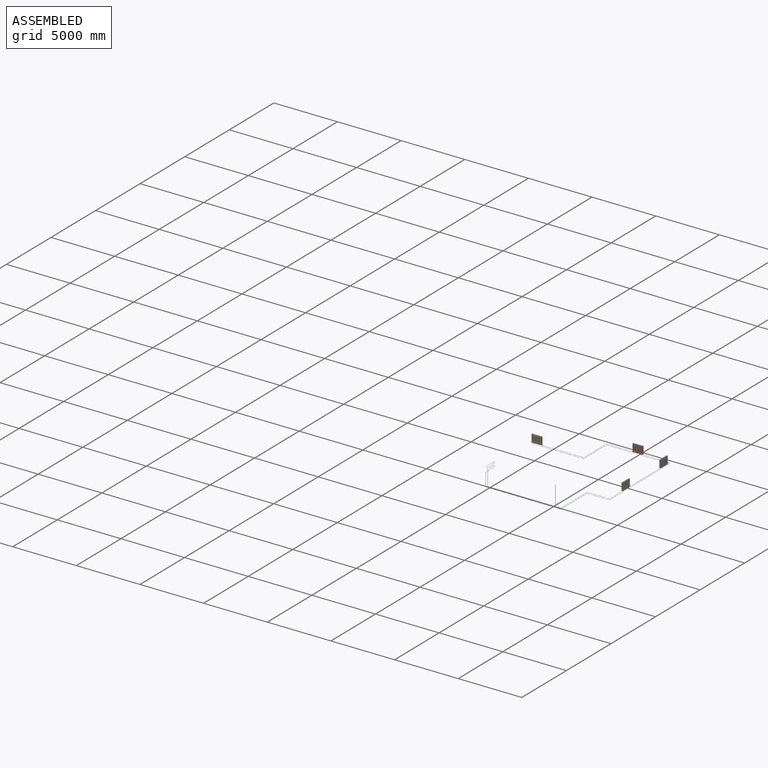
[diagram: assembled view]
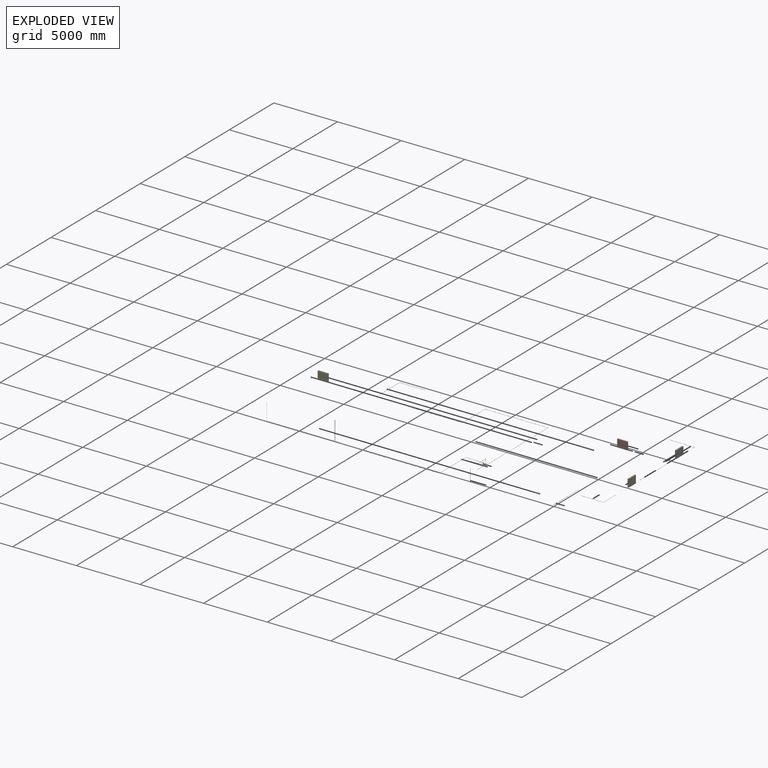
[diagram: exploded view]
GUIDED TOUR — MATED ASSEMBLY (Onshape document f1add12470df2a8bb8af2b6b, AutoMate assembly f1add12470df2a8bb8af2b6b_20e845e825281c4f701bb058_0910259504fdc3fc45e2ee12_default)

This assembly has 21 components, labeled P0..P20 below (a component is one placed occurrence of a part; the same part can appear more than once), held together by 20 mates. A mate is a constraint between two components; its type names the relative motion it leaves free:
  FASTENED — locks the two components together rigidly (no relative motion).
Axis/direction vectors are unit vectors and 'through' points are millimeter coordinates, both in the assembly's world frame.

MATES
  1. FASTENED "Fastened 10": P14 <-> P20, direction (0.000, -1.000, 0.000) through (2634.05, 8167.02, -1012.87) mm
  2. FASTENED "Fastened 8": P4 <-> P9, direction (0.000, -1.000, 0.000) through (2634.05, 3917.02, -1012.87) mm
  3. FASTENED "Fastened 17": P8 <-> P15, direction (1.000, 0.000, 0.000) through (-5540.95, 6682.02, -1062.87) mm
  4. FASTENED "Fastened 7": P9 <-> P19, direction (0.000, -1.000, 0.000) through (2634.05, 3867.02, -1062.87) mm
  5. FASTENED "Fastened 20": P6 <-> P17, direction (0.000, 0.000, -1.000) through (-4875.95, -457.98, 292.13) mm
  6. FASTENED "Fastened 18": P12 <-> P8, direction (1.000, 0.000, 0.000) through (-5590.95, 6682.02, -1012.87) mm
  7. FASTENED "Fastened 1": P17 <-> P13, direction (1.000, 0.000, 0.000) through (859.05, -457.98, -1062.87) mm
  8. FASTENED "Fastened 15": P18 <-> P7, direction (1.000, 0.000, 0.000) through (-240.95, 9232.02, -1012.87) mm
  9. FASTENED "Fastened 12": P3 <-> P16, direction (0.000, -1.000, 0.000) through (2634.05, 9017.02, -1062.87) mm
  10. FASTENED "Fastened 23": P5 <-> P1, direction (0.000, 0.000, 1.000) through (-5015.95, -457.98, -127.87) mm
  11. FASTENED "Fastened 11": P16 <-> P14, direction (0.000, -1.000, 0.000) through (2634.05, 8967.02, -1012.87) mm
  12. FASTENED "Fastened 6": P19 <-> P9, direction (0.000, 1.000, 0.000) through (2634.05, 3867.02, -1062.87) mm
  13. FASTENED "Fastened 24": P10 <-> P5, direction (-1.000, 0.000, 0.000) through (-4990.95, -457.98, -1152.87) mm
  14. FASTENED "Fastened 13": P11 <-> P3, direction (1.000, 0.000, 0.000) through (609.05, 9232.02, -1062.87) mm
  15. FASTENED "Fastened 14": P7 <-> P11, direction (1.000, 0.000, 0.000) through (559.05, 9232.02, -1012.87) mm
  16. FASTENED "Fastened 19": P0 <-> P12, direction (1.000, 0.000, 0.000) through (-6390.95, 6682.02, -1012.87) mm
  17. FASTENED "Fastened 22": P1 <-> P2, direction (0.000, -1.000, 0.000) through (-5015.95, -432.98, 317.13) mm
  18. FASTENED "Fastened 16": P15 <-> P18, direction (1.000, 0.000, 0.000) through (-290.95, 9232.02, -1062.87) mm
  19. FASTENED "Fastened 21": P2 <-> P6, direction (1.000, 0.000, 0.000) through (-4990.95, -457.98, 317.13) mm
  20. FASTENED "Fastened 9": P20 <-> P4, direction (0.000, -1.000, 0.000) through (2634.05, 4717.02, -1012.87) mm

ASSEMBLY ORDER
  1. P19 — the base component [order verified]
  2. P13 [order verified]
  3. P9 [order verified]
  4. P4 [order verified]
  5. P20 [order verified]
  6. P14 [order verified]
  7. P16 [order verified]
  8. P3 [order verified]
  9. P11 [order verified]
  10. P7 [order verified]
  11. P18 [order verified]
  12. P15 [order verified]
  13. P1 [order verified]
  14. P6 [order verified]
  15. P2 [order verified]
  16. P17 [order verified]
  17. P8 [order verified]
  18. P12 [order verified]
  19. P10 [order verified]
  20. P5 [order verified]
  21. P0 [order verified]
Order-tag legend:
  [order verified] — this step's position reverses a verified removal order: the component was checked to insert without passing through the ones already placed.

Of the 21 components, 4 carry the full construction recipe — the FeatureScript program that regenerates the part's solid from scratch; the rest are supplied as boundary geometry only.
Because this assembly has more than 12 components, the tour below covers the 12 most significant ones individually (every recipe-attached component first, then the largest by part volume), in assembly order; the remaining 9 are summarized together in a grouped section at the end.
Each toured component is shown spotlighted twice — in the assembled view, then in the exploded view, where a leader line traces a displaced component back to its assembled socket (saturated green if recipe-attached, orange if geometry-only; every other component desaturated gray) — followed by its recipe or geometry summary and the mates that hold it.
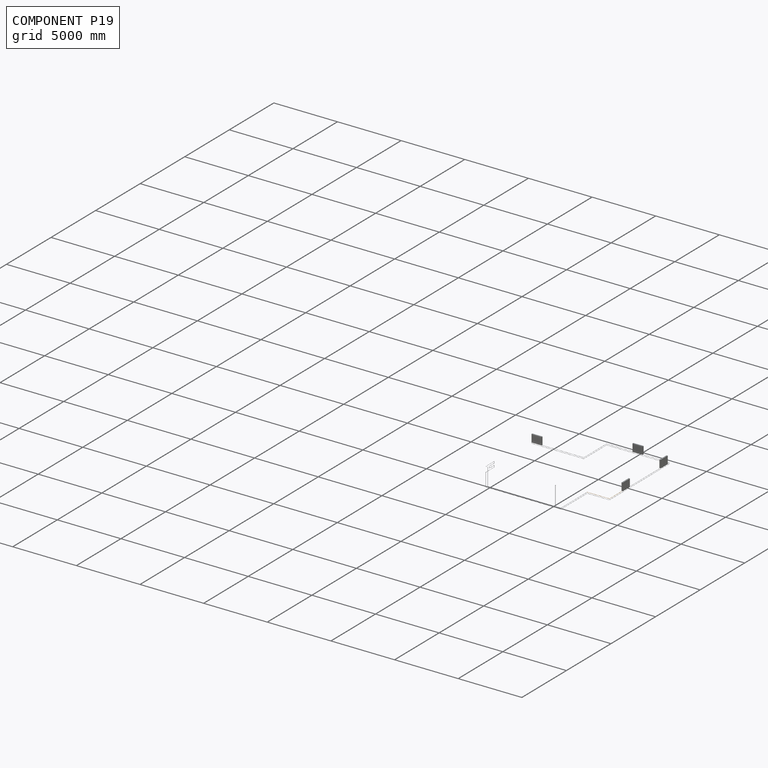
[diagram: component P19 — assembled]
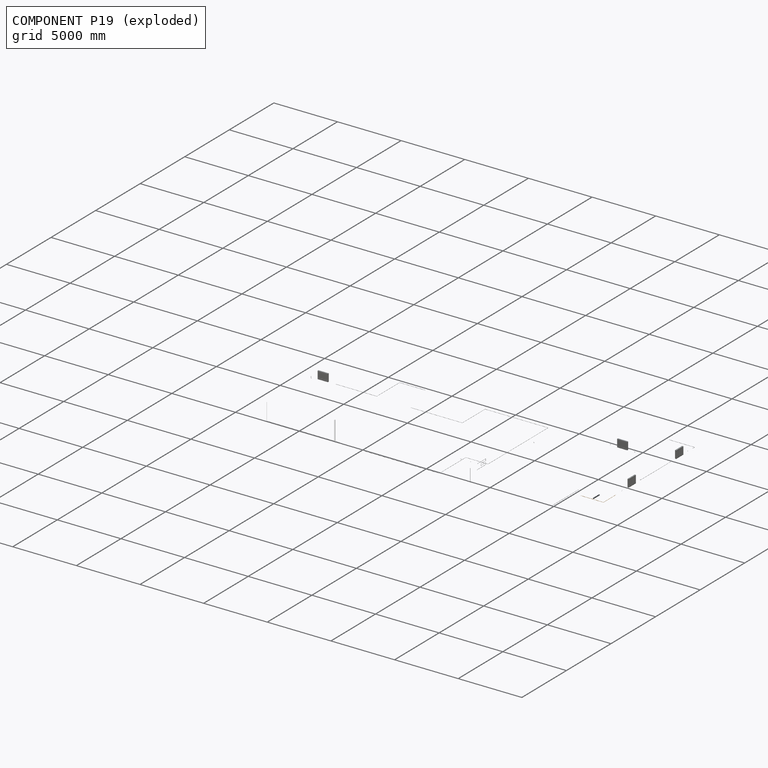
[diagram: component P19 — exploded]
COMPONENT P19 — geometry summary (no construction recipe available for this part):
  bounding box: 1768.7 x 1400.0 x 15.0 mm
  B-rep topology: 1 solid, 7 faces, 22 edges
  volume: 554376 mm^3 (1% of its bounding box)
  symmetry: mirror-symmetric across its z mid-plane
Held by: FASTENED mate "Fastened 7" to P9; FASTENED mate "Fastened 6" to P9.
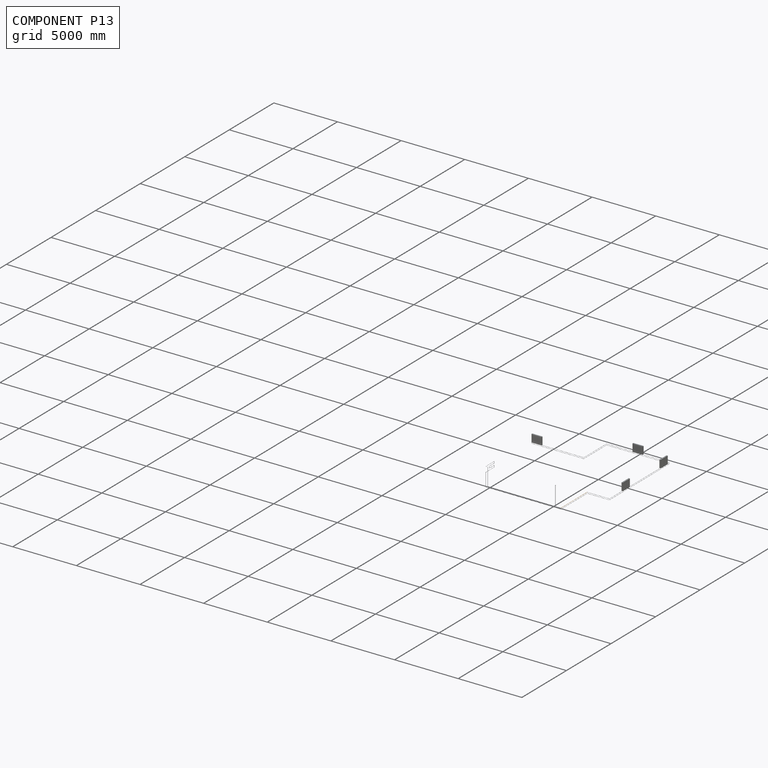
[diagram: component P13 — assembled]
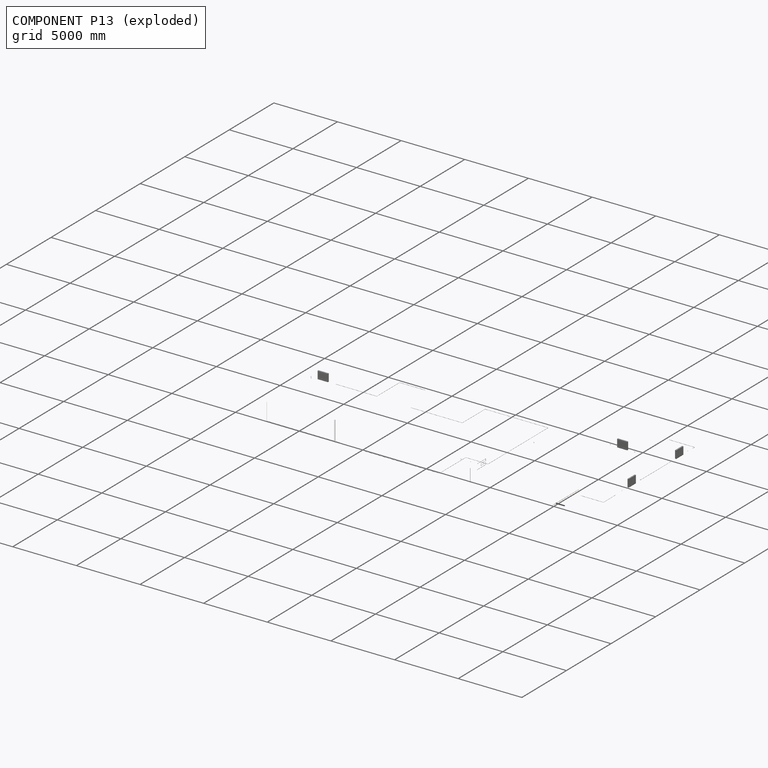
[diagram: component P13 — exploded]
COMPONENT P13 — geometry summary (no construction recipe available for this part):
  bounding box: 2944.4 x 34.4 x 15.0 mm
  B-rep topology: 1 solid, 5 faces, 14 edges
  volume: 521937 mm^3 (34% of its bounding box)
  symmetry: revolution-symmetric about the y axis through its bounding-box center; mirror-symmetric across its z mid-plane
Held by: FASTENED mate "Fastened 1" to P17.
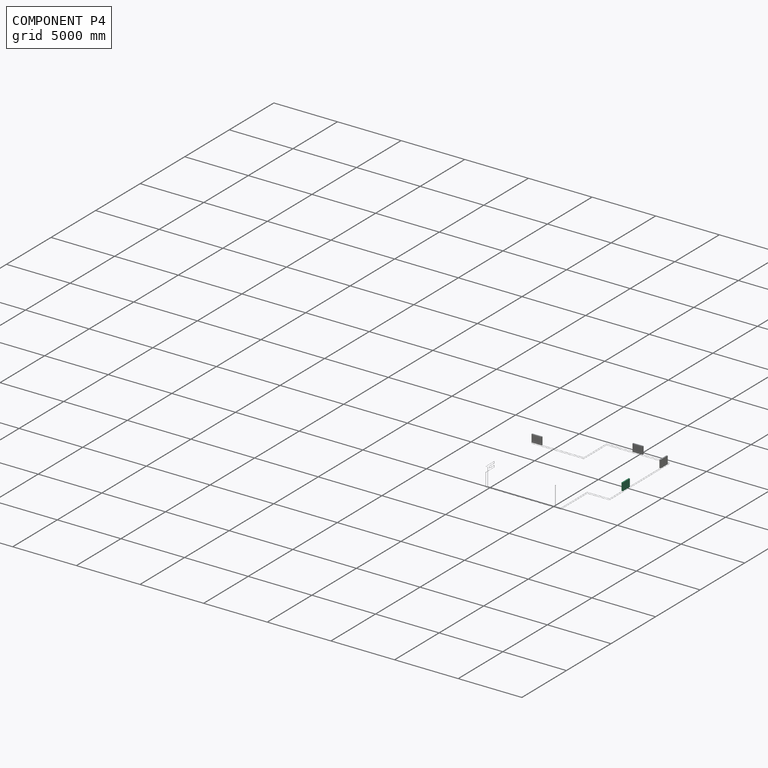
[diagram: component P4 — assembled]
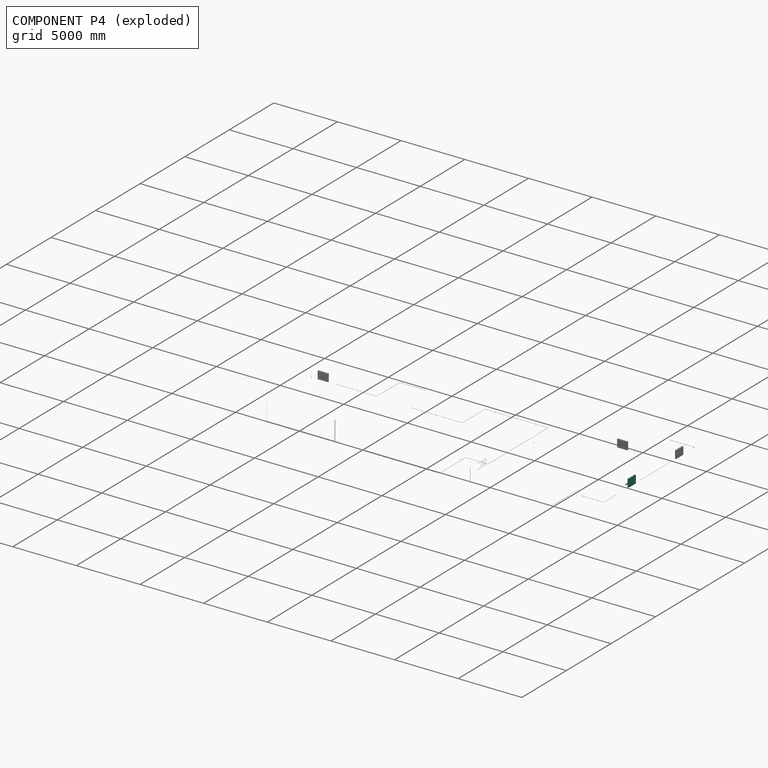
[diagram: component P4 — exploded]
COMPONENT P4 — recipe-attached (CADFS 00287549, mesh-verified: the recipe's output STEP matches this component's geometry to below the mesh-comparison resolution (tessellation chordal tolerance ~1.51 mm)).
Held by: FASTENED mate "Fastened 8" to P9; FASTENED mate "Fastened 9" to P20.
Construction recipe (FeatureScript — the CAD program that rebuilds this solid; sketch coordinates are in the units given by the * unit suffixes, e.g. mm):

FeatureScript 1511;
import(path : "onshape/std/geometry.fs", version : "1511.0");
import(path : "onshape/std/common.fs", version : "1511.0");
const mm = millimeter;
const VERTEX = EntityType.VERTEX;
const EDGE = EntityType.EDGE;
const FACE = EntityType.FACE;
const BODY = EntityType.BODY;
function v(x, y){return vector(x, y);}
function OD(order){return orderDisambiguation(order);}
function OSD(set){return originalSetDisambiguation(set);}
function TD(topology){return topologyDisambiguation(topology);}
function TDD(query){return trueDependencyDisambiguation(query);}
function sQuery(a, b, c) {return sketchEntityQuery(a, b, c);}

annotation { "Feature Type Name" : "Feature", "Feature Type Description" : "" }
export const myFeature = defineFeature(function(context is Context, id is Id, definition is map)
    precondition{}
    {
        {
            var Q0;
            Q0=qCreatedBy(makeId("Front.planeOp"),FACE);
            var sketch = newSketch(context, id + "F0", { "sketchPlane" : qUnion([Q0])});
            skLineSegment(sketch, "E0.bottom", {"start": v(0, -50) * mm, "end": v(800, -50) * mm});
            skLineSegment(sketch, "E0.top", {"start": v(0, 550) * mm, "end": v(800, 550) * mm});
            skLineSegment(sketch, "E0.left", {"start": v(0, -50) * mm, "end": v(0, 550) * mm});
            skLineSegment(sketch, "E0.right", {"start": v(800, -50) * mm, "end": v(800, 550) * mm});
            skLineSegment(sketch, "E1.bottom", {"start": v(65, 450) * mm, "end": v(95, 450) * mm});
            skLineSegment(sketch, "E1.top", {"start": v(65, 50) * mm, "end": v(95, 50) * mm});
            skLineSegment(sketch, "E1.left", {"start": v(65, 450) * mm, "end": v(65, 50) * mm});
            skLineSegment(sketch, "E1.right", {"start": v(95, 450) * mm, "end": v(95, 50) * mm});
            skLineSegment(sketch, "E2.1.0.0", {"start": v(145, 450) * mm, "end": v(145, 50) * mm});
            skLineSegment(sketch, "E2.1.0.1", {"start": v(175, 450) * mm, "end": v(175, 50) * mm});
            skLineSegment(sketch, "E2.1.0.2", {"start": v(145, 50) * mm, "end": v(175, 50) * mm});
            skLineSegment(sketch, "E2.1.0.3", {"start": v(145, 450) * mm, "end": v(175, 450) * mm});
            skLineSegment(sketch, "E2.2.0.0", {"start": v(225, 450) * mm, "end": v(225, 50) * mm});
            skLineSegment(sketch, "E2.2.0.1", {"start": v(255, 450) * mm, "end": v(255, 50) * mm});
            skLineSegment(sketch, "E2.2.0.2", {"start": v(225, 50) * mm, "end": v(255, 50) * mm});
            skLineSegment(sketch, "E2.2.0.3", {"start": v(225, 450) * mm, "end": v(255, 450) * mm});
            skLineSegment(sketch, "E2.3.0.0", {"start": v(305, 450) * mm, "end": v(305, 50) * mm});
            skLineSegment(sketch, "E2.3.0.1", {"start": v(335, 450) * mm, "end": v(335, 50) * mm});
            skLineSegment(sketch, "E2.3.0.2", {"start": v(305, 50) * mm, "end": v(335, 50) * mm});
            skLineSegment(sketch, "E2.3.0.3", {"start": v(305, 450) * mm, "end": v(335, 450) * mm});
            skLineSegment(sketch, "E2.4.0.0", {"start": v(385, 450) * mm, "end": v(385, 50) * mm});
            skLineSegment(sketch, "E2.4.0.1", {"start": v(415, 450) * mm, "end": v(415, 50) * mm});
            skLineSegment(sketch, "E2.4.0.2", {"start": v(385, 50) * mm, "end": v(415, 50) * mm});
            skLineSegment(sketch, "E2.4.0.3", {"start": v(385, 450) * mm, "end": v(415, 450) * mm});
            skLineSegment(sketch, "E2.5.0.0", {"start": v(465, 450) * mm, "end": v(465, 50) * mm});
            skLineSegment(sketch, "E2.5.0.1", {"start": v(495, 450) * mm, "end": v(495, 50) * mm});
            skLineSegment(sketch, "E2.5.0.2", {"start": v(465, 50) * mm, "end": v(495, 50) * mm});
            skLineSegment(sketch, "E2.5.0.3", {"start": v(465, 450) * mm, "end": v(495, 450) * mm});
            skLineSegment(sketch, "E2.6.0.0", {"start": v(545, 450) * mm, "end": v(545, 50) * mm});
            skLineSegment(sketch, "E2.6.0.1", {"start": v(575, 450) * mm, "end": v(575, 50) * mm});
            skLineSegment(sketch, "E2.6.0.2", {"start": v(545, 50) * mm, "end": v(575, 50) * mm});
            skLineSegment(sketch, "E2.6.0.3", {"start": v(545, 450) * mm, "end": v(575, 450) * mm});
            skLineSegment(sketch, "E2.7.0.0", {"start": v(625, 450) * mm, "end": v(625, 50) * mm});
            skLineSegment(sketch, "E2.7.0.1", {"start": v(655, 450) * mm, "end": v(655, 50) * mm});
            skLineSegment(sketch, "E2.7.0.2", {"start": v(625, 50) * mm, "end": v(655, 50) * mm});
            skLineSegment(sketch, "E2.7.0.3", {"start": v(625, 450) * mm, "end": v(655, 450) * mm});
            skLineSegment(sketch, "E2.8.0.0", {"start": v(705, 450) * mm, "end": v(705, 50) * mm});
            skLineSegment(sketch, "E2.8.0.1", {"start": v(735, 450) * mm, "end": v(735, 50) * mm});
            skLineSegment(sketch, "E2.8.0.2", {"start": v(705, 50) * mm, "end": v(735, 50) * mm});
            skLineSegment(sketch, "E2.8.0.3", {"start": v(705, 450) * mm, "end": v(735, 450) * mm});
            skLineSegment(sketch, "E2.direction1", {"start": v(65, 50) * mm, "end": v(145, 50) * mm, "construction": true});
            skSolve(sketch);
        }
        {
            var Q0;
            Q0 = qSketchRegion(id + "F0", true);
            extrude(context, id + "F1", {"entities" : qUnion([Q0]), "endBound" : BoundingType.SYMMETRIC, "depth" : 100 * mm, "offsetDistance" : 25 * mm});
        }
    });
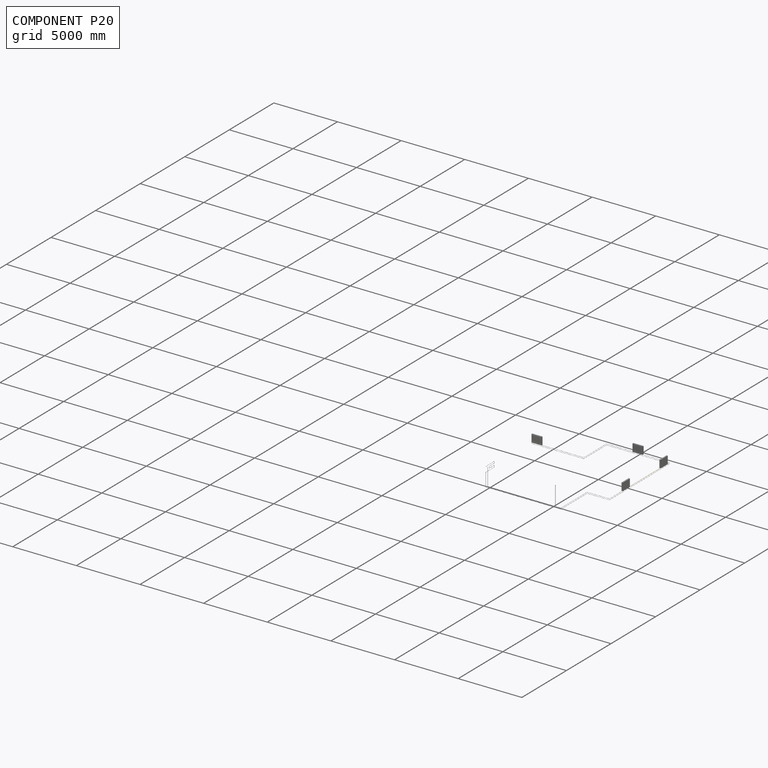
[diagram: component P20 — assembled]
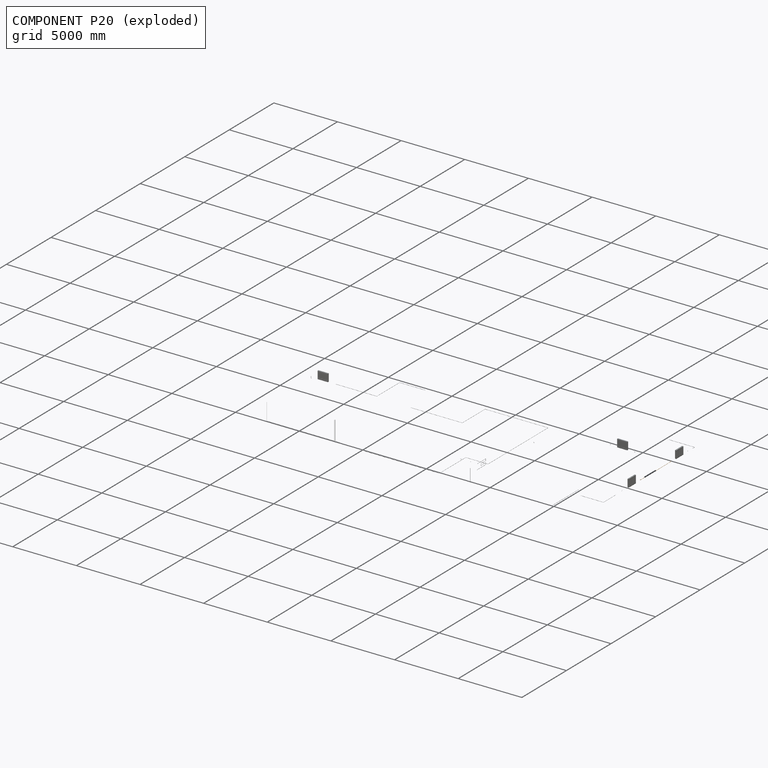
[diagram: component P20 — exploded]
COMPONENT P20 — geometry summary (no construction recipe available for this part):
  bounding box: 3450.0 x 68.7 x 15.0 mm
  B-rep topology: 1 solid, 11 faces, 38 edges
  volume: 622786 mm^3 (18% of its bounding box)
  symmetry: 2-fold rotationally symmetric about the z axis; mirror-symmetric across its x mid-plane, y mid-plane
Held by: FASTENED mate "Fastened 10" to P14; FASTENED mate "Fastened 9" to P4.
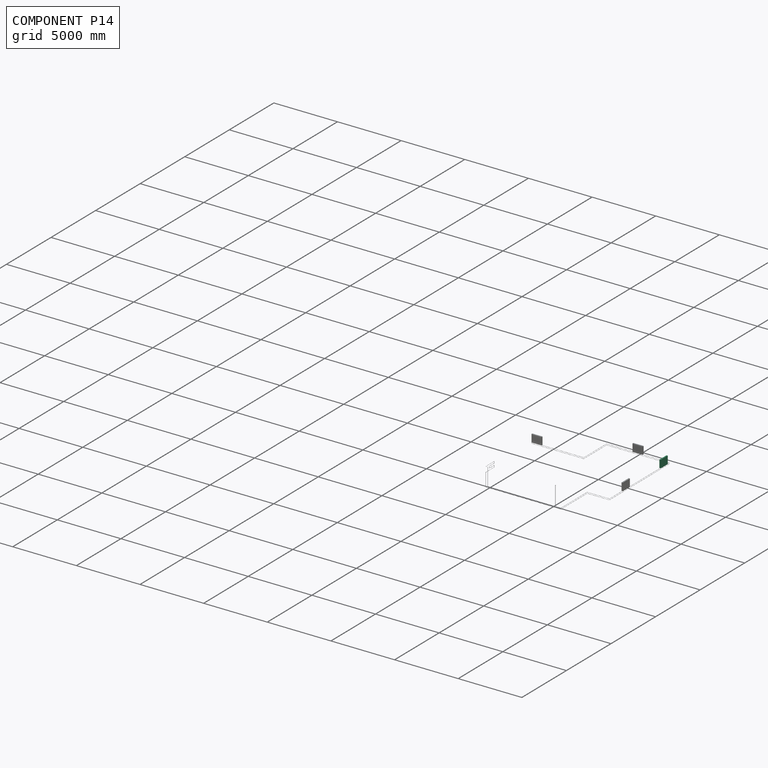
[diagram: component P14 — assembled]
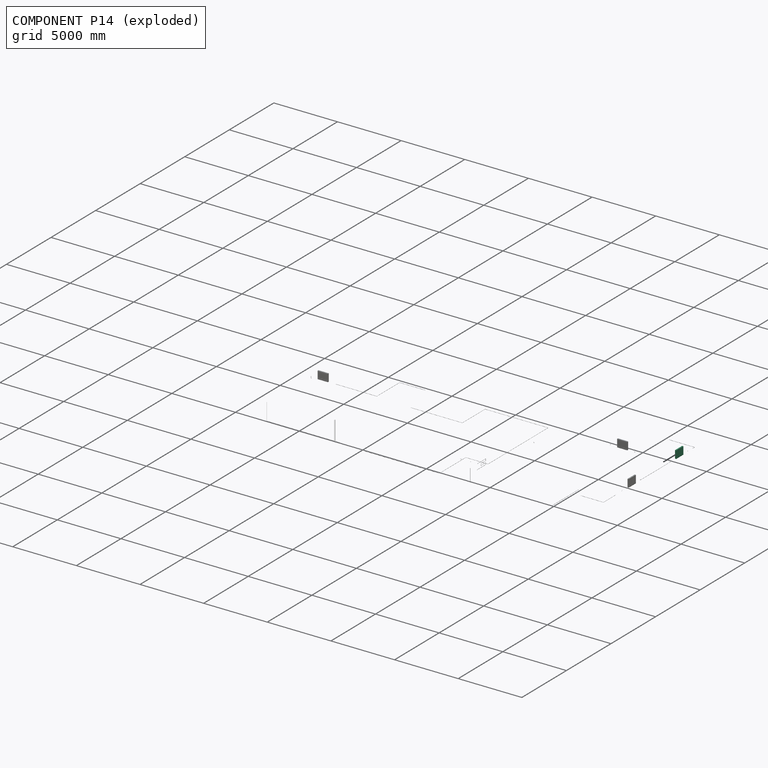
[diagram: component P14 — exploded]
COMPONENT P14 — same part as P4 (CADFS 00287549); its construction recipe is shown at P4.
Held by: FASTENED mate "Fastened 10" to P20; FASTENED mate "Fastened 11" to P16.
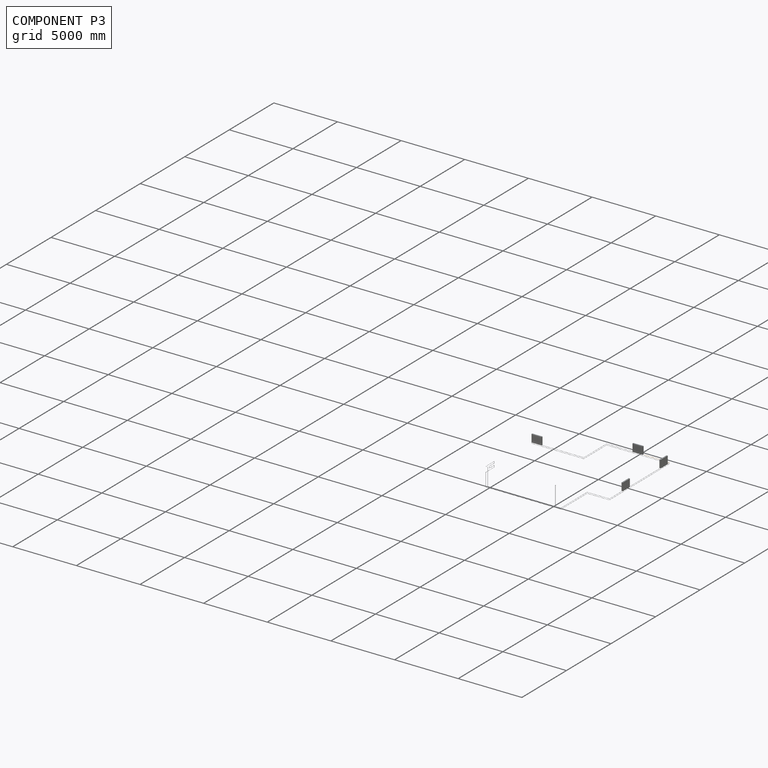
[diagram: component P3 — assembled]
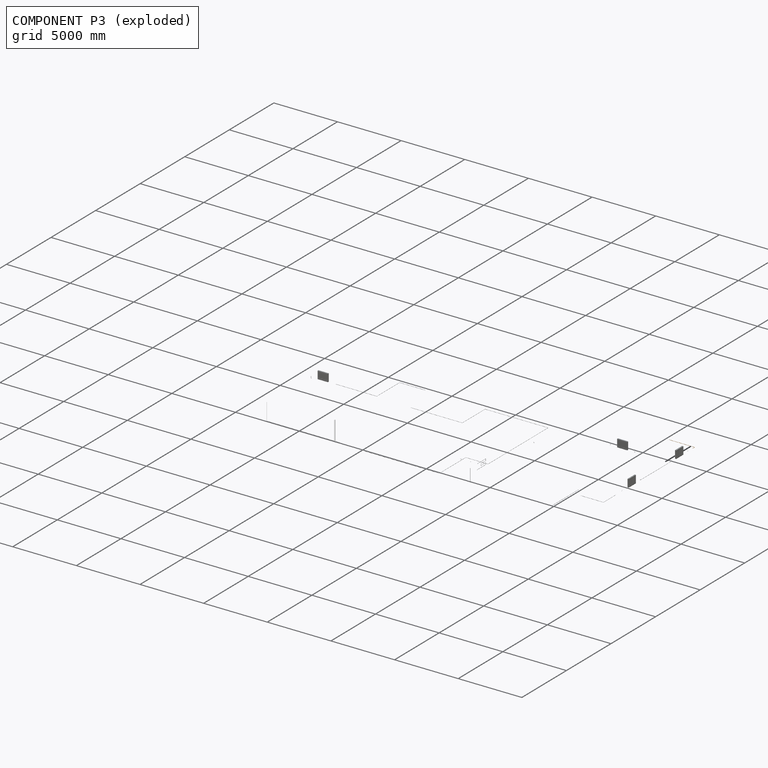
[diagram: component P3 — exploded]
COMPONENT P3 — geometry summary (no construction recipe available for this part):
  bounding box: 2034.4 x 224.4 x 15.0 mm
  B-rep topology: 1 solid, 5 faces, 14 edges
  volume: 394703 mm^3 (6% of its bounding box)
  symmetry: mirror-symmetric across its z mid-plane
Held by: FASTENED mate "Fastened 12" to P16; FASTENED mate "Fastened 13" to P11.
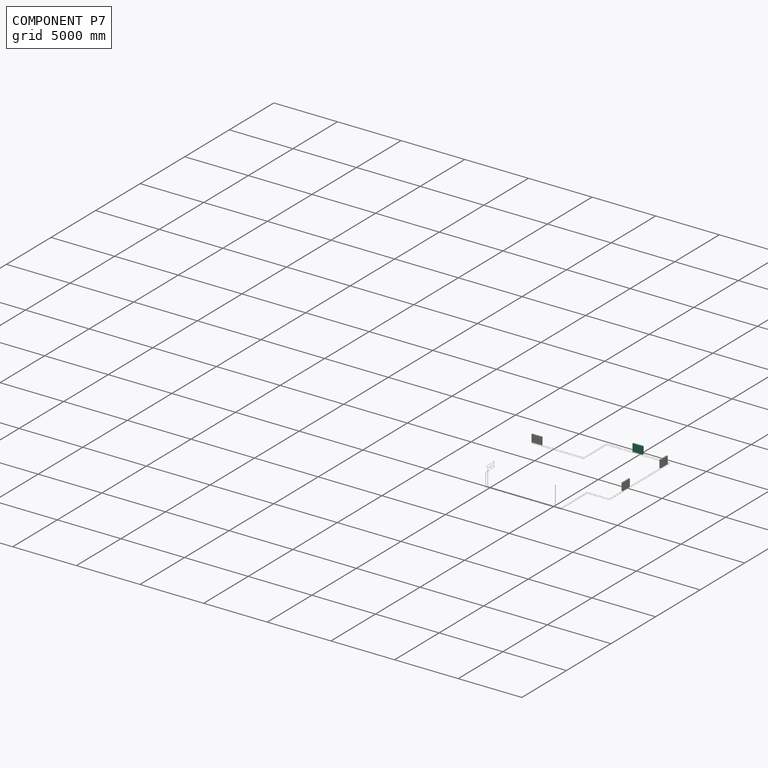
[diagram: component P7 — assembled]
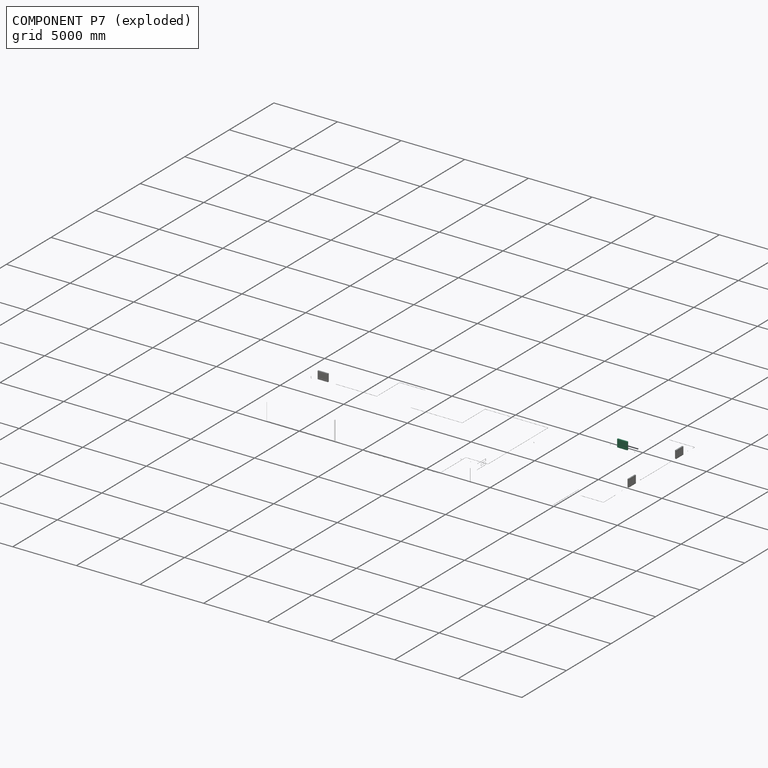
[diagram: component P7 — exploded]
COMPONENT P7 — same part as P4 (CADFS 00287549); its construction recipe is shown at P4.
Held by: FASTENED mate "Fastened 15" to P18; FASTENED mate "Fastened 14" to P11.
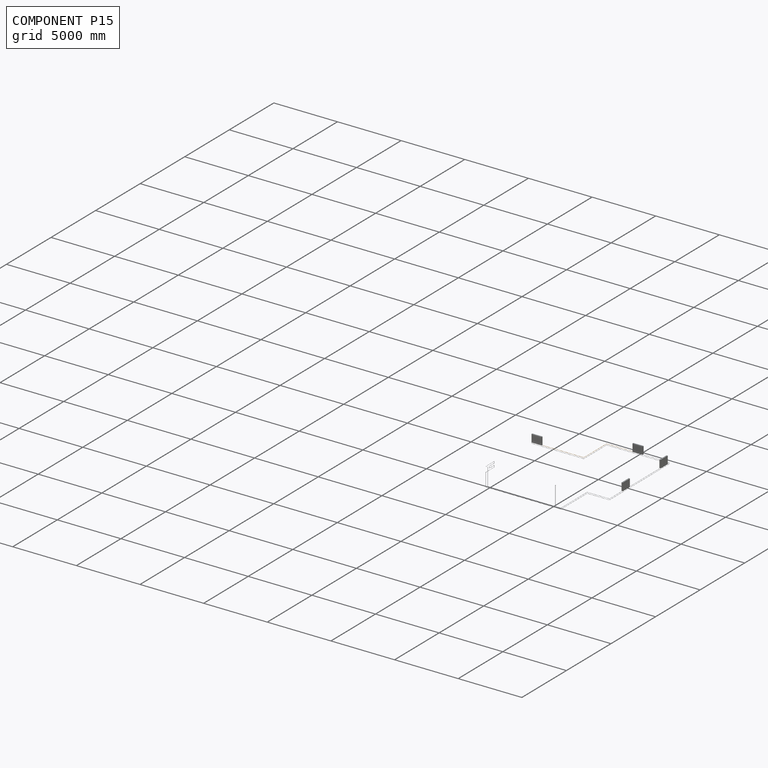
[diagram: component P15 — assembled]
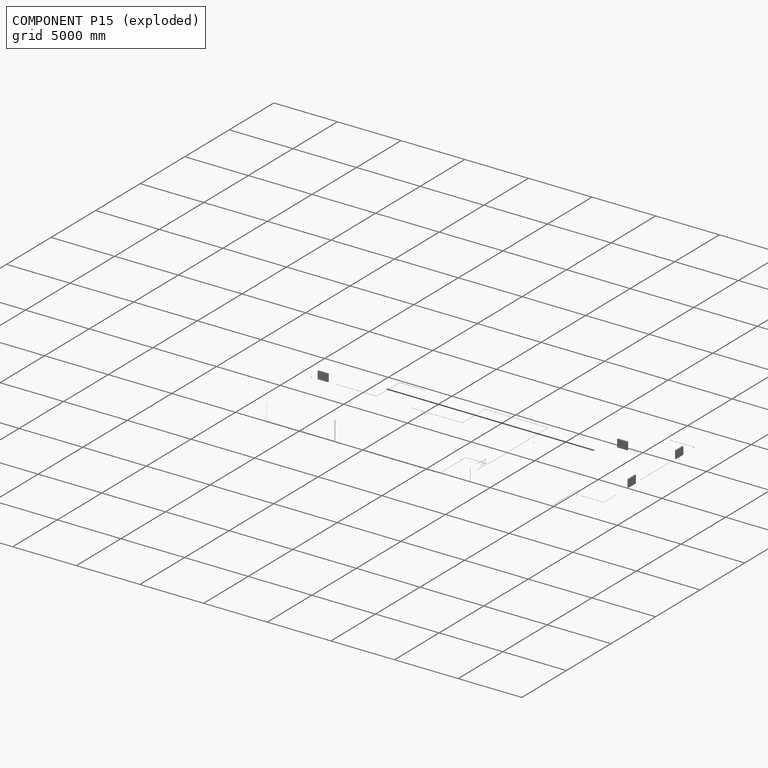
[diagram: component P15 — exploded]
COMPONENT P15 — geometry summary (no construction recipe available for this part):
  bounding box: 5250.0 x 2568.7 x 15.0 mm
  B-rep topology: 1 solid, 7 faces, 22 edges
  volume: 1376098 mm^3 (1% of its bounding box)
  symmetry: mirror-symmetric across its z mid-plane
Held by: FASTENED mate "Fastened 17" to P8; FASTENED mate "Fastened 16" to P18.
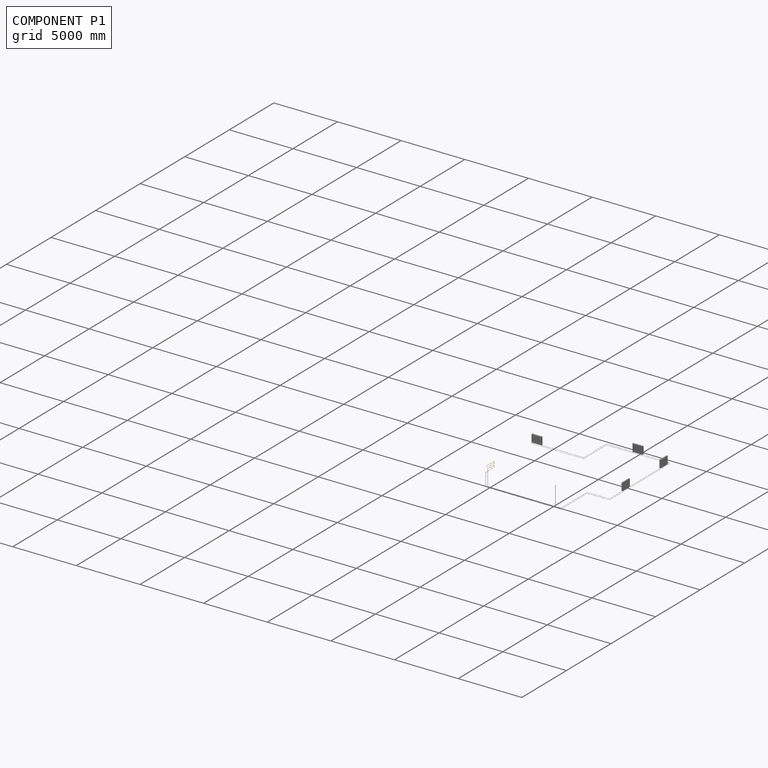
[diagram: component P1 — assembled]
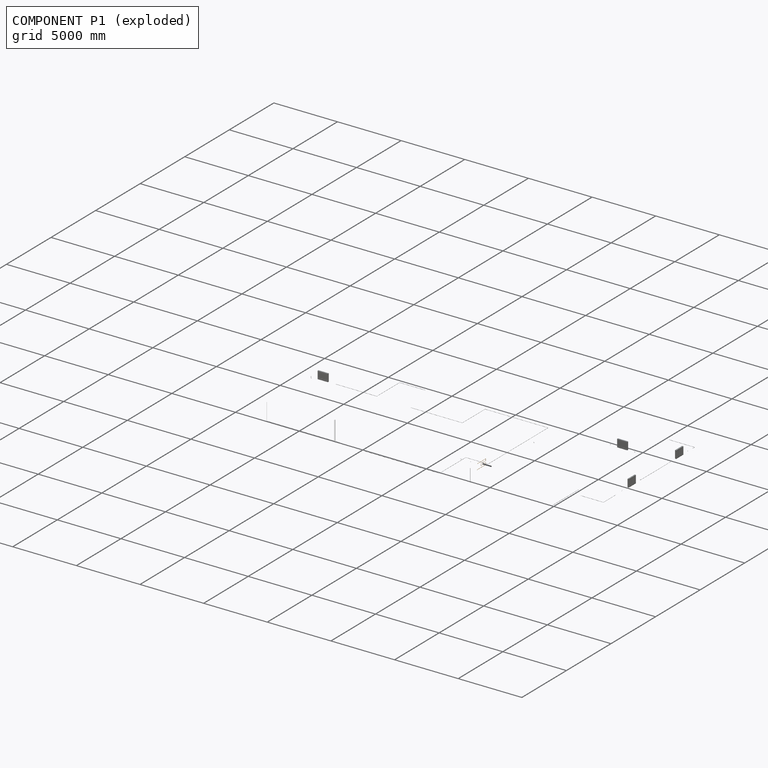
[diagram: component P1 — exploded]
COMPONENT P1 — geometry summary (no construction recipe available for this part):
  bounding box: 968.7 x 454.4 x 15.0 mm
  B-rep topology: 1 solid, 17 faces, 62 edges
  volume: 596400 mm^3 (9% of its bounding box)
  symmetry: mirror-symmetric across its x mid-plane
Held by: FASTENED mate "Fastened 23" to P5; FASTENED mate "Fastened 22" to P2.
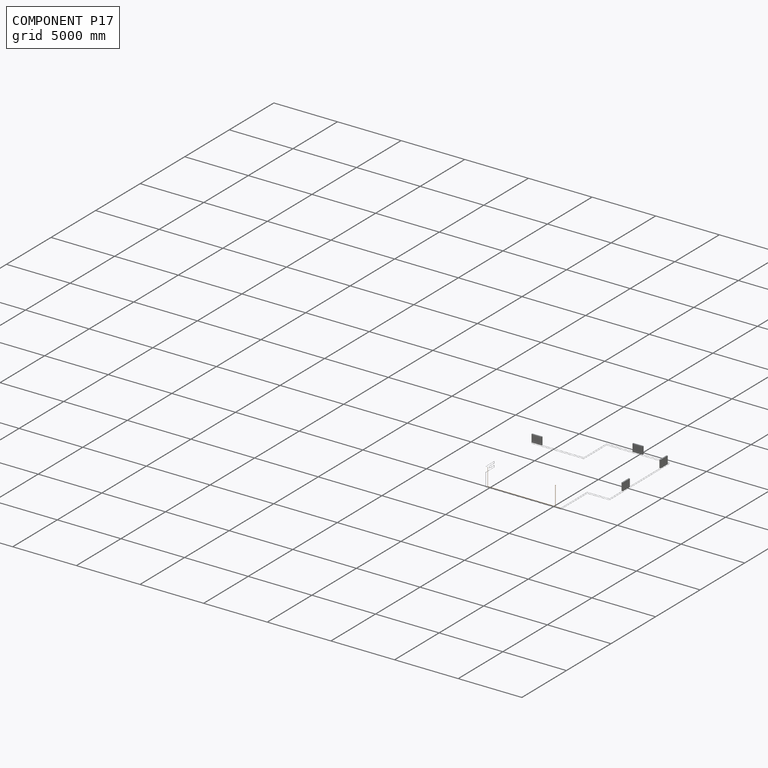
[diagram: component P17 — assembled]
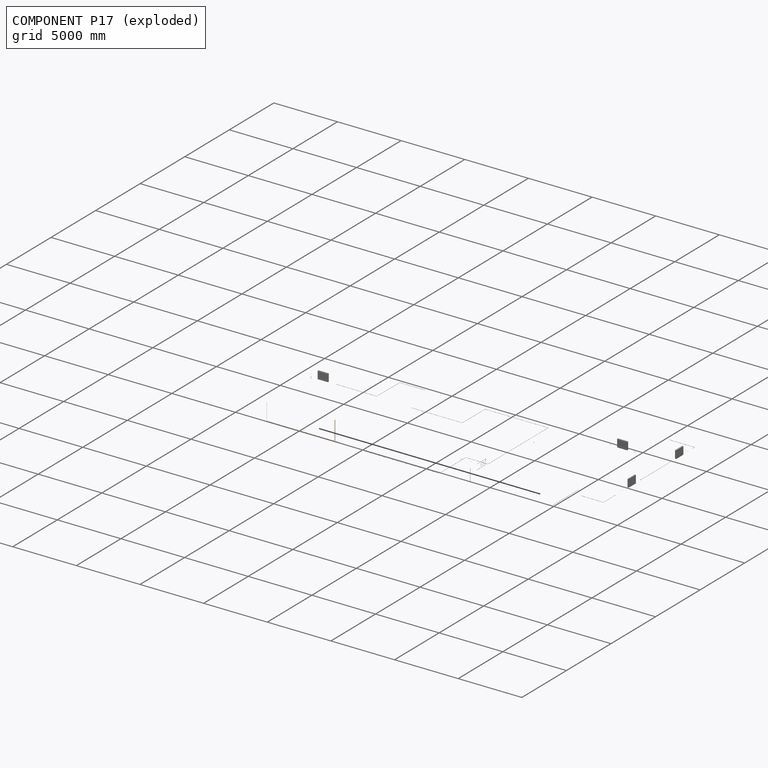
[diagram: component P17 — exploded]
COMPONENT P17 — geometry summary (no construction recipe available for this part):
  bounding box: 5744.4 x 1529.0 x 15.0 mm
  B-rep topology: 1 solid, 13 faces, 46 edges
  volume: 1780699 mm^3 (1% of its bounding box)
  symmetry: mirror-symmetric across its y mid-plane
Held by: FASTENED mate "Fastened 20" to P6; FASTENED mate "Fastened 1" to P13.
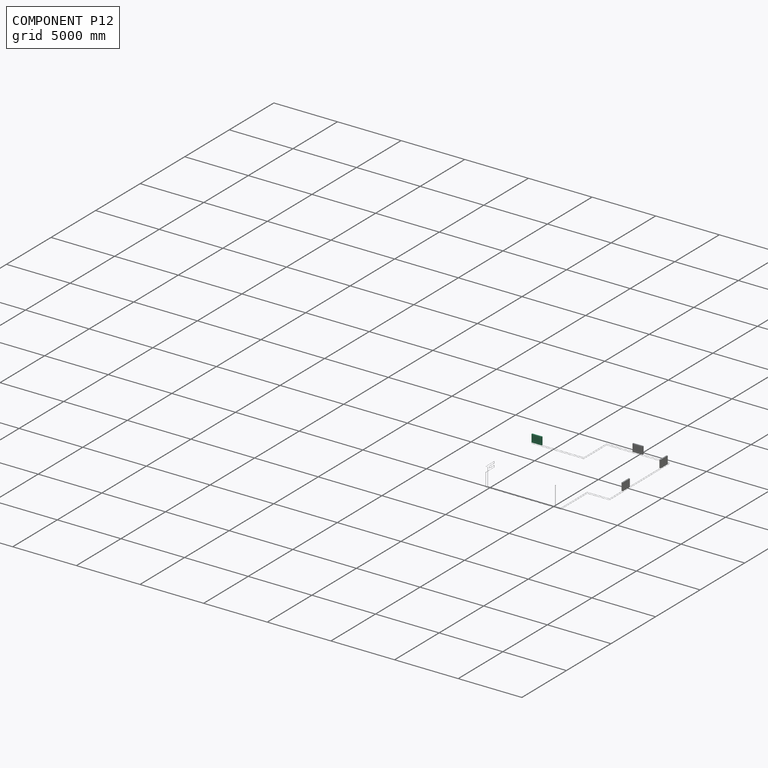
[diagram: component P12 — assembled]
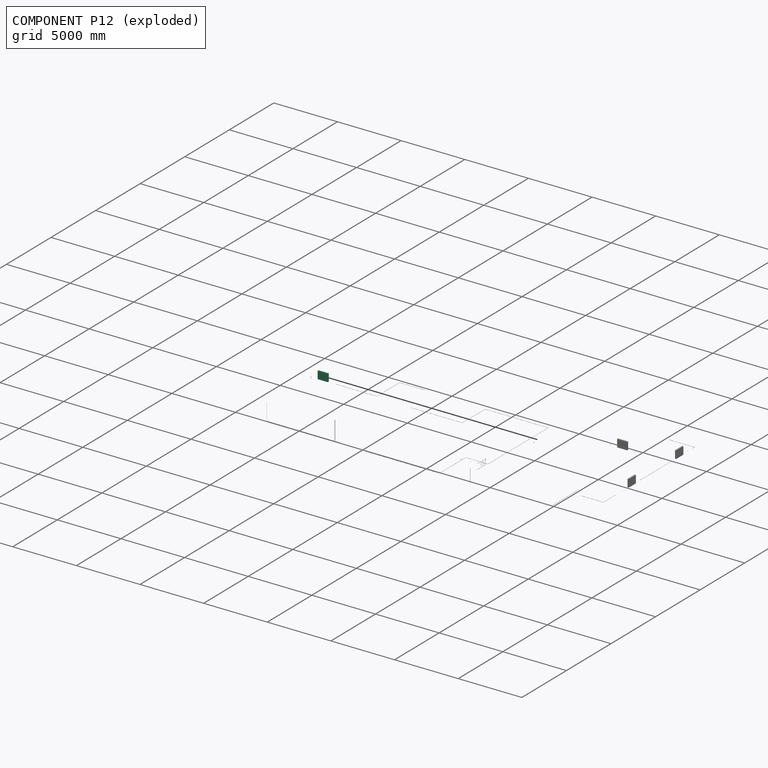
[diagram: component P12 — exploded]
COMPONENT P12 — same part as P4 (CADFS 00287549); its construction recipe is shown at P4.
Held by: FASTENED mate "Fastened 18" to P8; FASTENED mate "Fastened 19" to P0.
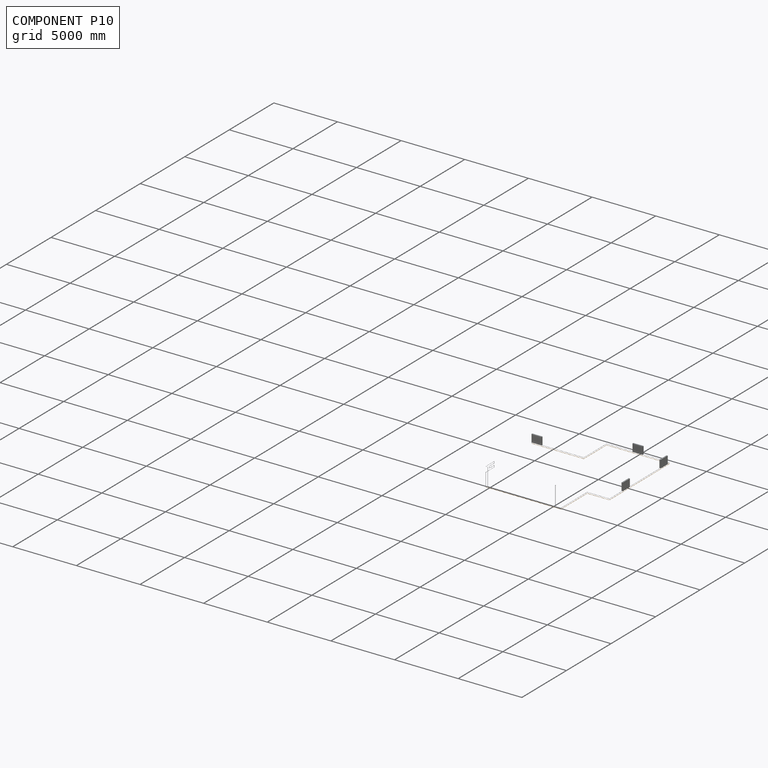
[diagram: component P10 — assembled]
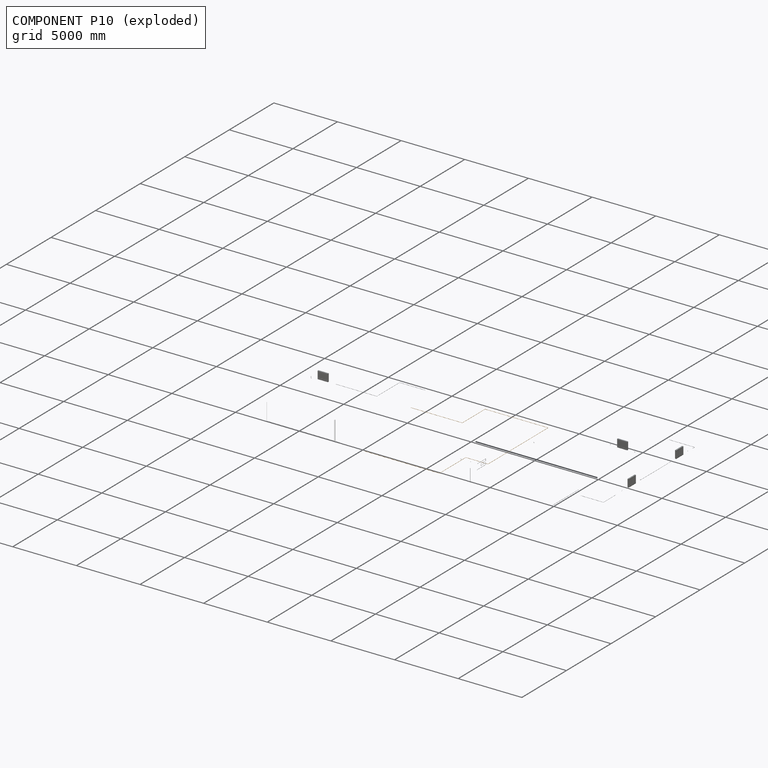
[diagram: component P10 — exploded]
COMPONENT P10 — geometry summary (no construction recipe available for this part):
  bounding box: 9708.7 x 9034.4 x 15.0 mm
  B-rep topology: 1 solid, 15 faces, 54 edges
  volume: 5098458 mm^3 (0% of its bounding box)
  symmetry: mirror-symmetric across its z mid-plane
Held by: FASTENED mate "Fastened 24" to P5.
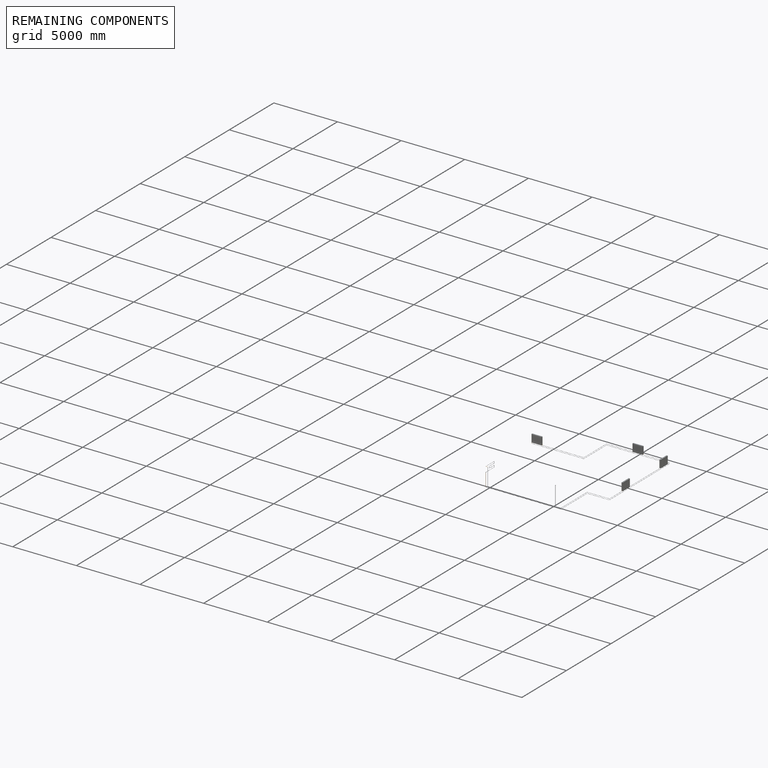
[diagram: remaining components — assembled]
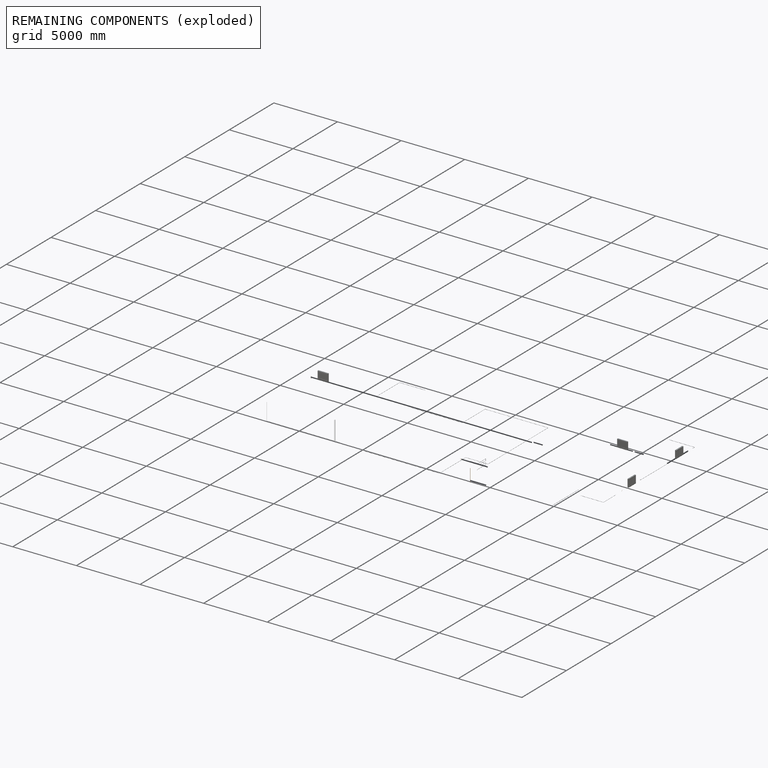
[diagram: remaining components — exploded]
REMAINING COMPONENTS (grouped) — the 9 components below fall outside the per-component tour by the significance rule stated above; both spotlight views highlight the whole group.
  P9: bounding box 68.7 x 50.0 x 15.0 mm, volume 15396 mm^3. Held by: FASTENED mate "Fastened 8" to P4; FASTENED mate "Fastened 7" to P19; FASTENED mate "Fastened 6" to P19.
  P16: bounding box 68.7 x 50.0 x 15.0 mm, volume 15396 mm^3. Held by: FASTENED mate "Fastened 12" to P3; FASTENED mate "Fastened 11" to P14.
  P11: bounding box 68.7 x 50.0 x 15.0 mm, volume 15396 mm^3. Held by: FASTENED mate "Fastened 13" to P3; FASTENED mate "Fastened 14" to P7.
  P18: bounding box 68.7 x 50.0 x 15.0 mm, volume 15396 mm^3. Held by: FASTENED mate "Fastened 15" to P7; FASTENED mate "Fastened 16" to P15.
  P6: bounding box 124.4 x 34.4 x 15.0 mm, volume 23602 mm^3. Held by: FASTENED mate "Fastened 20" to P17; FASTENED mate "Fastened 21" to P2.
  P2: bounding box 34.4 x 34.4 x 15.0 mm, volume 7698 mm^3. Held by: FASTENED mate "Fastened 22" to P1; FASTENED mate "Fastened 21" to P6.
  P8: bounding box 68.7 x 50.0 x 15.0 mm, volume 15396 mm^3. Held by: FASTENED mate "Fastened 17" to P15; FASTENED mate "Fastened 18" to P12.
  P5: bounding box 1034.4 x 34.4 x 15.0 mm, volume 184413 mm^3. Held by: FASTENED mate "Fastened 23" to P1; FASTENED mate "Fastened 24" to P10.
  P0: bounding box 158.7 x 34.4 x 15.0 mm, volume 31300 mm^3. Held by: FASTENED mate "Fastened 19" to P12.
PROVENANCE & LICENSES
Assembly (occurrences, transforms, mates, per-part STEP geometry): AutoMate dataset, Zenodo record 7776208, CC0.
Construction recipes: CADFS (HuggingFace VladPyatov/CADFS, CC-BY-4.0, layered over the ABC dataset), FeatureScript reconstruction programs keyed by ABC model id.
Join: ABC meta listings map ABC model id -> Onshape documentId; within a shared document, parts are matched by geometric signature (bounding-box dims + volume at 0.1% relative tolerance, exact B-rep face/solid counts).
Verification: 4 of this assembly's 21 components carry a recipe attachment, and every attachment is mesh-verified: the CADFS STEP and the AutoMate member STEP were compared as meshes in their shared local frame (symmetric sampled-point-to-mesh distance); worst across the 4 attachments: below the mesh-comparison resolution (tessellation chordal tolerance ~1.51 mm) on a 1005 mm part.
Renders: orthographic iso camera (az 35 / el 25); the floor grid conveys scale (grid pitch printed in each image; no ruler). In the exploded view each component is displaced by its stored offset vector: the offsets alone carry the explosion direction (mate normal/axis signs are not orientation cues and do not encode it), and separation distances are assigned per mate-chain, not proportionally to assembly-order depth.
